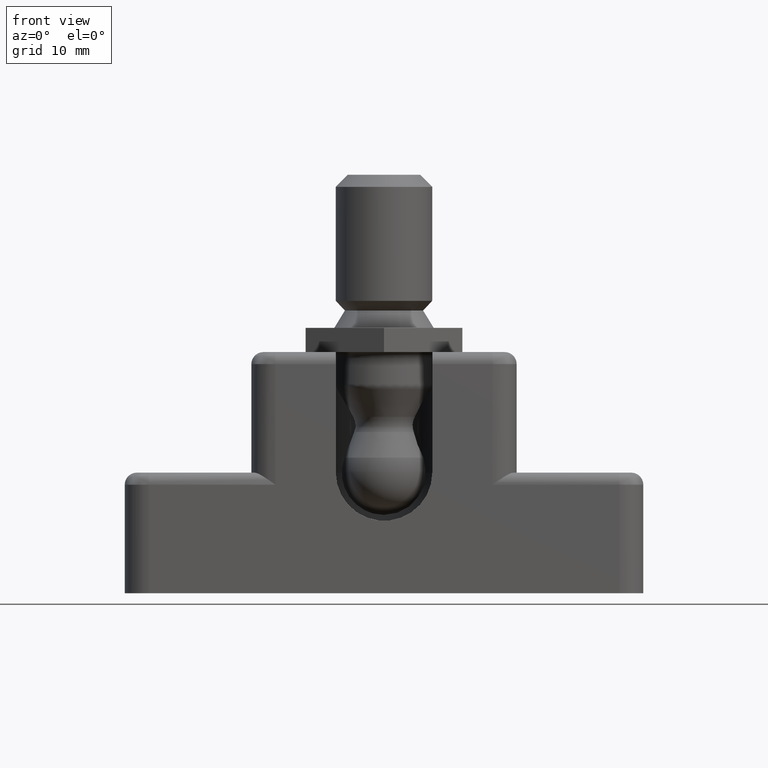
[diagram: clean part render]
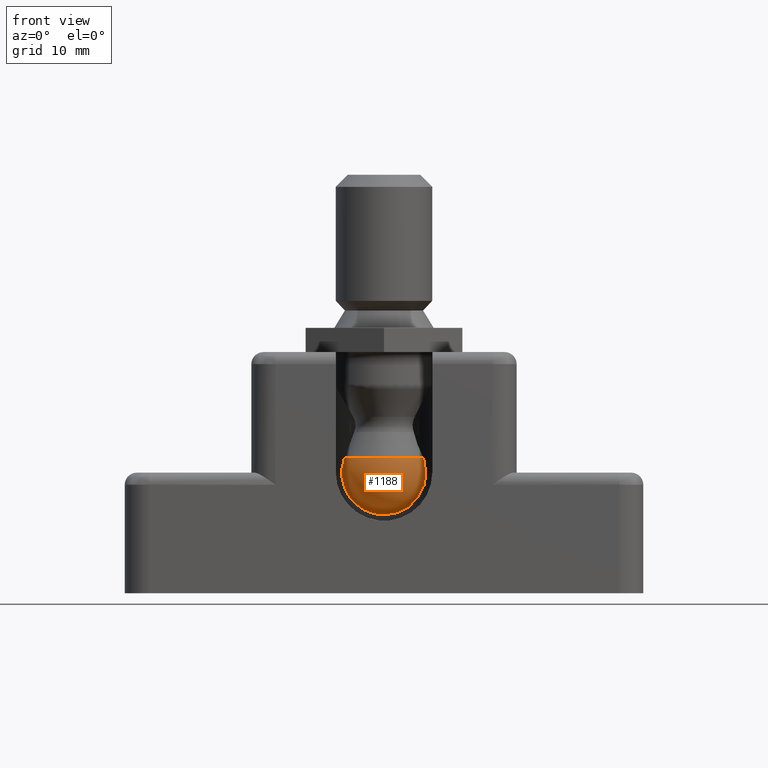
[diagram: same view with one face highlighted and labeled with its STEP entity id]
A machine part, front view. The second image highlights one B-rep face of the part: STEP entity #1188.
In plain terms, the highlighted spherical surface has radius 3.5 mm.
Its self-contained STEP definition (entity closure, byte-faithful):
#52=SPHERICAL_SURFACE('',#1291,3.49999999601114);
#57=B_SPLINE_CURVE_WITH_KNOTS('',3,(#1851,#1852,#1853,#1854,#1855,#1856,
#1857,#1858,#1859,#1860),.UNSPECIFIED.,.F.,.F.,(4,2,2,2,4),(0.687874452625706,
0.729450961992715,0.792899332708691,0.824623518066678,0.856347703424666),
 .UNSPECIFIED.);
#58=B_SPLINE_CURVE_WITH_KNOTS('',3,(#1864,#1865,#1866,#1867,#1868,#1869,
#1870,#1871,#1872,#1873),.UNSPECIFIED.,.F.,.F.,(4,2,2,2,4),(-2.48289833137961E-10,
0.031724185109698,0.0634483704676859,0.126896741183662,0.16847325055067),
 .UNSPECIFIED.);
#298=FACE_OUTER_BOUND('',#367,.T.);
#367=EDGE_LOOP('',(#828,#829,#830,#831,#832,#833,#834));
#445=CIRCLE('',#1292,3.27158137);
#446=CIRCLE('',#1293,3.21859828709412);
#447=CIRCLE('',#1294,3.27158137);
#448=CIRCLE('',#1295,3.49999999601114);
#517=VERTEX_POINT('',#1847);
#518=VERTEX_POINT('',#1848);
#519=VERTEX_POINT('',#1850);
#520=VERTEX_POINT('',#1861);
#521=VERTEX_POINT('',#1863);
#522=VERTEX_POINT('',#1875);
#636=EDGE_CURVE('',#517,#518,#445,.T.);
#637=EDGE_CURVE('',#517,#519,#57,.T.);
#638=EDGE_CURVE('',#519,#520,#446,.T.);
#639=EDGE_CURVE('',#520,#521,#58,.T.);
#640=EDGE_CURVE('',#518,#521,#447,.T.);
#641=EDGE_CURVE('',#518,#522,#448,.T.);
#828=ORIENTED_EDGE('',*,*,#636,.F.);
#829=ORIENTED_EDGE('',*,*,#637,.T.);
#830=ORIENTED_EDGE('',*,*,#638,.T.);
#831=ORIENTED_EDGE('',*,*,#639,.T.);
#832=ORIENTED_EDGE('',*,*,#640,.F.);
#833=ORIENTED_EDGE('',*,*,#641,.T.);
#834=ORIENTED_EDGE('',*,*,#641,.F.);
#1188=ADVANCED_FACE('',(#298),#52,.T.);
#1291=AXIS2_PLACEMENT_3D('',#1846,#1448,#1449);
#1292=AXIS2_PLACEMENT_3D('',#1849,#1450,#1451);
#1293=AXIS2_PLACEMENT_3D('',#1862,#1452,#1453);
#1294=AXIS2_PLACEMENT_3D('',#1874,#1454,#1455);
#1295=AXIS2_PLACEMENT_3D('',#1876,#1456,#1457);
#1448=DIRECTION('center_axis',(6.12323399573676E-17,0.,1.));
#1449=DIRECTION('ref_axis',(1.,0.,0.));
#1450=DIRECTION('center_axis',(0.,0.,1.));
#1451=DIRECTION('ref_axis',(1.,0.,0.));
#1452=DIRECTION('center_axis',(0.,-1.,-2.48292408855377E-9));
#1453=DIRECTION('ref_axis',(0.,-2.48292408855377E-9,1.));
#1454=DIRECTION('center_axis',(0.,0.,1.));
#1455=DIRECTION('ref_axis',(1.,0.,0.));
#1456=DIRECTION('center_axis',(0.,-1.,0.));
#1457=DIRECTION('ref_axis',(-1.,0.,0.));
#1846=CARTESIAN_POINT('Origin',(0.,11.,10.0000000024829));
#1847=CARTESIAN_POINT('',(-2.46733014470939,13.1483776707352,11.2436861876955));
#1848=CARTESIAN_POINT('',(-3.27158137,11.,11.24368619));
#1849=CARTESIAN_POINT('Origin',(0.,11.,11.24368619));
#1850=CARTESIAN_POINT('',(-3.21859828709412,12.375000013961,10.));
#1851=CARTESIAN_POINT('Ctrl Pts',(-2.46733014292002,13.1483776720461,11.2436861832255));
#1852=CARTESIAN_POINT('Ctrl Pts',(-2.57388877317936,13.0648694821737,11.1765404746332));
#1853=CARTESIAN_POINT('Ctrl Pts',(-2.6716354566779,12.9791934182327,11.1019819019067));
#1854=CARTESIAN_POINT('Ctrl Pts',(-2.8822793330737,12.7790781672342,10.9066844270165));
#1855=CARTESIAN_POINT('Ctrl Pts',(-3.00149807624436,12.6473248747568,10.7581622116513));
#1856=CARTESIAN_POINT('Ctrl Pts',(-3.12713760513808,12.4950631638051,10.4976610154713));
#1857=CARTESIAN_POINT('Ctrl Pts',(-3.16054385019366,12.4520118977653,10.4045338885923));
#1858=CARTESIAN_POINT('Ctrl Pts',(-3.20623748451472,12.3919633119735,10.2085736735734));
#1859=CARTESIAN_POINT('Ctrl Pts',(-3.21859828709412,12.375000013961,10.1057472868537));
#1860=CARTESIAN_POINT('Ctrl Pts',(-3.21859828709412,12.375000013961,10.0000000024829));
#1861=CARTESIAN_POINT('',(3.21859828709412,12.375000013961,10.));
#1862=CARTESIAN_POINT('Origin',(0.,12.375000013961,10.0000000058969));
#1863=CARTESIAN_POINT('',(2.46733014470939,13.1483776707352,11.2436861876955));
#1864=CARTESIAN_POINT('Ctrl Pts',(3.21859828709412,12.375000013961,10.));
#1865=CARTESIAN_POINT('Ctrl Pts',(3.21859828728786,12.3750000136984,10.1057472843708));
#1866=CARTESIAN_POINT('Ctrl Pts',(3.20623748451472,12.3919633119735,10.2085736735734));
#1867=CARTESIAN_POINT('Ctrl Pts',(3.16054385019366,12.4520118977653,10.4045338885923));
#1868=CARTESIAN_POINT('Ctrl Pts',(3.12713760513808,12.4950631638051,10.4976610154713));
#1869=CARTESIAN_POINT('Ctrl Pts',(3.00149807624436,12.6473248747568,10.7581622116513));
#1870=CARTESIAN_POINT('Ctrl Pts',(2.8822793330737,12.7790781672342,10.9066844270165));
#1871=CARTESIAN_POINT('Ctrl Pts',(2.6716354566779,12.9791934182327,11.1019819019067));
#1872=CARTESIAN_POINT('Ctrl Pts',(2.57388877317937,13.0648694821737,11.1765404746332));
#1873=CARTESIAN_POINT('Ctrl Pts',(2.46733014292003,13.1483776720461,11.2436861832255));
#1874=CARTESIAN_POINT('Origin',(0.,11.,11.24368619));
#1875=CARTESIAN_POINT('',(-2.1431318960654E-16,11.,6.50000000647176));
#1876=CARTESIAN_POINT('Origin',(0.,11.,10.0000000024829));